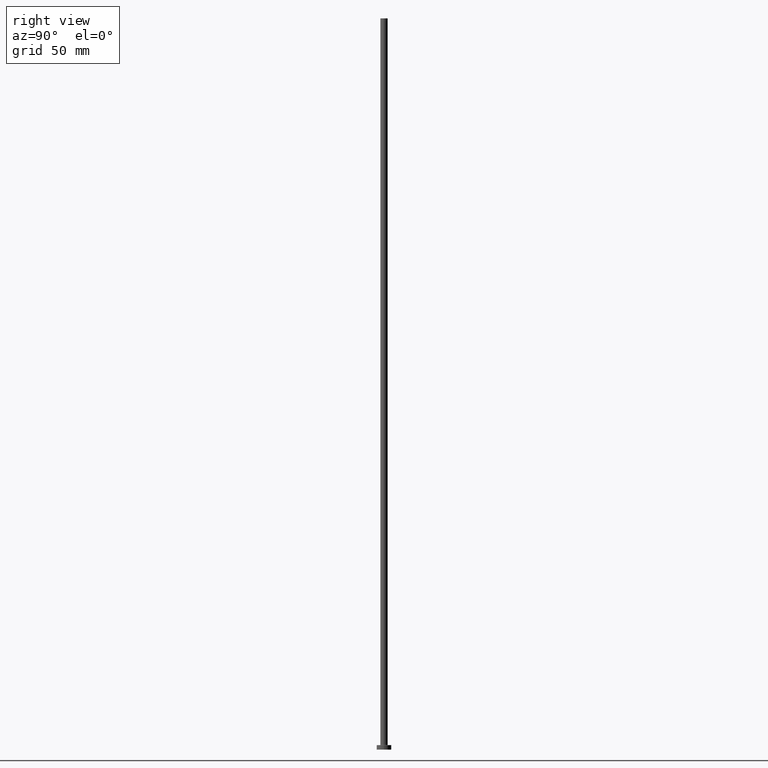
[diagram: clean part render]
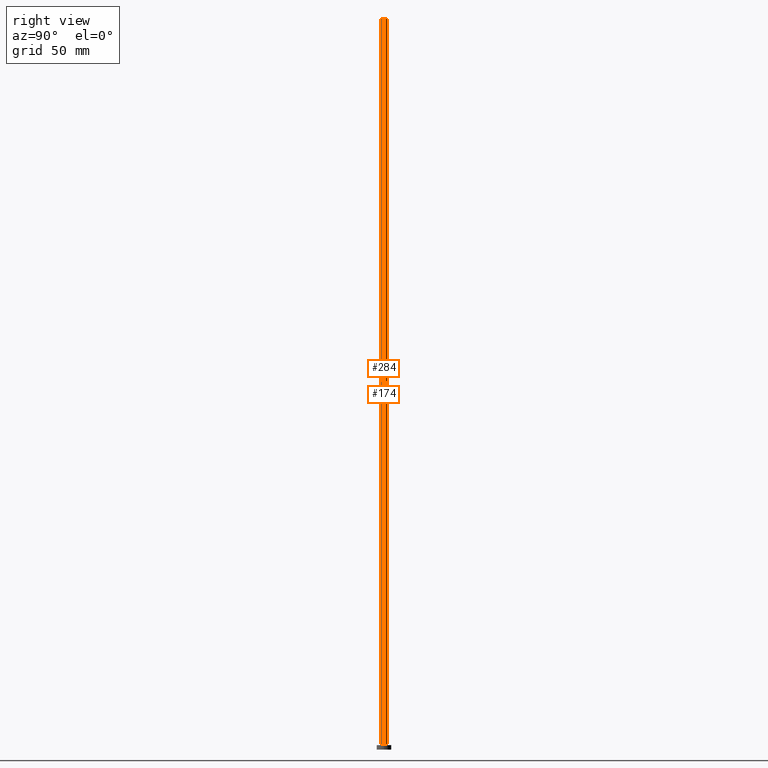
[diagram: same view with one multi-face feature highlighted, each face labeled with its STEP entity id]
A machine part, right view. The highlighted faces form ONE feature: a constant-radius fillet chain: 2 tangent blend faces with common blend radius 2.5 mm. The faces share edges in the B-rep.
Their STEP definitions:
[1] entity #174 (Cylinder):
#10 = VECTOR ( 'NONE', #457, 1000.000000000000000 ) ;
#11 = ORIENTED_EDGE ( 'NONE', *, *, #79, .T. ) ;
#13 = DIRECTION ( 'NONE',  ( -0.000000000000000000, -0.000000000000000000, -1.000000000000000000 ) ) ;
#19 = VERTEX_POINT ( 'NONE', #168 ) ;
#23 = CARTESIAN_POINT ( 'NONE',  ( 2.500000000000000000, 3.061616997868382648E-16, 3.300000000000025135 ) ) ;
#24 = CARTESIAN_POINT ( 'NONE',  ( 2.500000000000000000, 3.061616997868382648E-16, 500.0000000000000000 ) ) ;
#26 = AXIS2_PLACEMENT_3D ( 'NONE', #300, #407, #374 ) ;
#43 = AXIS2_PLACEMENT_3D ( 'NONE', #269, #385, #310 ) ;
#50 = VERTEX_POINT ( 'NONE', #23 ) ;
#63 = LINE ( 'NONE', #279, #10 ) ;
#79 = EDGE_CURVE ( 'NONE', #50, #19, #242, .T. ) ;
#89 = VECTOR ( 'NONE', #13, 1000.000000000000000 ) ;
#114 = CIRCLE ( 'NONE', #210, 2.500000000000000000 ) ;
#118 = EDGE_LOOP ( 'NONE', ( #258, #294, #11, #361 ) ) ;
#119 = LINE ( 'NONE', #326, #89 ) ;
#153 = CARTESIAN_POINT ( 'NONE',  ( -2.500000000000000000, 0.000000000000000000, 500.0000000000000000 ) ) ;
#168 = CARTESIAN_POINT ( 'NONE',  ( -2.500000000000000000, 0.000000000000000000, 3.300000000000025135 ) ) ;
#174 = ADVANCED_FACE ( 'NONE', ( #335 ), #193, .T. ) ;
#193 = CYLINDRICAL_SURFACE ( 'NONE', #26, 2.500000000000000000 ) ;
#210 = AXIS2_PLACEMENT_3D ( 'NONE', #411, #275, #306 ) ;
#218 = EDGE_CURVE ( 'NONE', #289, #19, #119, .T. ) ;
#242 = CIRCLE ( 'NONE', #43, 2.500000000000000000 ) ;
#258 = ORIENTED_EDGE ( 'NONE', *, *, #291, .F. ) ;
#269 = CARTESIAN_POINT ( 'NONE',  ( 0.000000000000000000, 0.000000000000000000, 3.300000000000025135 ) ) ;
#275 = DIRECTION ( 'NONE',  ( 0.000000000000000000, 0.000000000000000000, 1.000000000000000000 ) ) ;
#279 = CARTESIAN_POINT ( 'NONE',  ( 2.500000000000000000, 3.061616997868382648E-16, 500.0000000000000000 ) ) ;
#289 = VERTEX_POINT ( 'NONE', #153 ) ;
#291 = EDGE_CURVE ( 'NONE', #400, #289, #114, .T. ) ;
#294 = ORIENTED_EDGE ( 'NONE', *, *, #323, .T. ) ;
#300 = CARTESIAN_POINT ( 'NONE',  ( 0.000000000000000000, 0.000000000000000000, 500.0000000000000000 ) ) ;
#306 = DIRECTION ( 'NONE',  ( 1.000000000000000000, 0.000000000000000000, 0.000000000000000000 ) ) ;
#310 = DIRECTION ( 'NONE',  ( 1.000000000000000000, 0.000000000000000000, 0.000000000000000000 ) ) ;
#323 = EDGE_CURVE ( 'NONE', #400, #50, #63, .T. ) ;
#326 = CARTESIAN_POINT ( 'NONE',  ( -2.500000000000000000, 0.000000000000000000, 500.0000000000000000 ) ) ;
#335 = FACE_OUTER_BOUND ( 'NONE', #118, .T. ) ;
#361 = ORIENTED_EDGE ( 'NONE', *, *, #218, .F. ) ;
#374 = DIRECTION ( 'NONE',  ( -1.000000000000000000, 0.000000000000000000, 0.000000000000000000 ) ) ;
#385 = DIRECTION ( 'NONE',  ( 0.000000000000000000, 0.000000000000000000, 1.000000000000000000 ) ) ;
#400 = VERTEX_POINT ( 'NONE', #24 ) ;
#407 = DIRECTION ( 'NONE',  ( -0.000000000000000000, -0.000000000000000000, -1.000000000000000000 ) ) ;
#411 = CARTESIAN_POINT ( 'NONE',  ( 0.000000000000000000, 0.000000000000000000, 500.0000000000000000 ) ) ;
#457 = DIRECTION ( 'NONE',  ( -0.000000000000000000, -0.000000000000000000, -1.000000000000000000 ) ) ;
[2] entity #284 (Cylinder):
#10 = VECTOR ( 'NONE', #457, 1000.000000000000000 ) ;
#13 = DIRECTION ( 'NONE',  ( -0.000000000000000000, -0.000000000000000000, -1.000000000000000000 ) ) ;
#17 = ORIENTED_EDGE ( 'NONE', *, *, #323, .F. ) ;
#18 = DIRECTION ( 'NONE',  ( -1.000000000000000000, 0.000000000000000000, 0.000000000000000000 ) ) ;
#19 = VERTEX_POINT ( 'NONE', #168 ) ;
#23 = CARTESIAN_POINT ( 'NONE',  ( 2.500000000000000000, 3.061616997868382648E-16, 3.300000000000025135 ) ) ;
#24 = CARTESIAN_POINT ( 'NONE',  ( 2.500000000000000000, 3.061616997868382648E-16, 500.0000000000000000 ) ) ;
#50 = VERTEX_POINT ( 'NONE', #23 ) ;
#54 = CIRCLE ( 'NONE', #415, 2.500000000000000000 ) ;
#63 = LINE ( 'NONE', #279, #10 ) ;
#82 = EDGE_LOOP ( 'NONE', ( #17, #176, #116, #396 ) ) ;
#89 = VECTOR ( 'NONE', #13, 1000.000000000000000 ) ;
#106 = CIRCLE ( 'NONE', #417, 2.500000000000000000 ) ;
#116 = ORIENTED_EDGE ( 'NONE', *, *, #218, .T. ) ;
#119 = LINE ( 'NONE', #326, #89 ) ;
#153 = CARTESIAN_POINT ( 'NONE',  ( -2.500000000000000000, 0.000000000000000000, 500.0000000000000000 ) ) ;
#160 = DIRECTION ( 'NONE',  ( 1.000000000000000000, 0.000000000000000000, 0.000000000000000000 ) ) ;
#168 = CARTESIAN_POINT ( 'NONE',  ( -2.500000000000000000, 0.000000000000000000, 3.300000000000025135 ) ) ;
#172 = EDGE_CURVE ( 'NONE', #19, #50, #54, .T. ) ;
#176 = ORIENTED_EDGE ( 'NONE', *, *, #397, .F. ) ;
#189 = CARTESIAN_POINT ( 'NONE',  ( 0.000000000000000000, 0.000000000000000000, 500.0000000000000000 ) ) ;
#196 = CARTESIAN_POINT ( 'NONE',  ( 0.000000000000000000, 0.000000000000000000, 3.300000000000025135 ) ) ;
#209 = DIRECTION ( 'NONE',  ( 0.000000000000000000, 0.000000000000000000, 1.000000000000000000 ) ) ;
#218 = EDGE_CURVE ( 'NONE', #289, #19, #119, .T. ) ;
#227 = FACE_OUTER_BOUND ( 'NONE', #82, .T. ) ;
#262 = CYLINDRICAL_SURFACE ( 'NONE', #313, 2.500000000000000000 ) ;
#279 = CARTESIAN_POINT ( 'NONE',  ( 2.500000000000000000, 3.061616997868382648E-16, 500.0000000000000000 ) ) ;
#284 = ADVANCED_FACE ( 'NONE', ( #227 ), #262, .T. ) ;
#289 = VERTEX_POINT ( 'NONE', #153 ) ;
#309 = DIRECTION ( 'NONE',  ( 1.000000000000000000, 0.000000000000000000, 0.000000000000000000 ) ) ;
#313 = AXIS2_PLACEMENT_3D ( 'NONE', #189, #332, #18 ) ;
#323 = EDGE_CURVE ( 'NONE', #400, #50, #63, .T. ) ;
#326 = CARTESIAN_POINT ( 'NONE',  ( -2.500000000000000000, 0.000000000000000000, 500.0000000000000000 ) ) ;
#332 = DIRECTION ( 'NONE',  ( -0.000000000000000000, -0.000000000000000000, -1.000000000000000000 ) ) ;
#339 = DIRECTION ( 'NONE',  ( 0.000000000000000000, 0.000000000000000000, 1.000000000000000000 ) ) ;
#390 = CARTESIAN_POINT ( 'NONE',  ( 0.000000000000000000, 0.000000000000000000, 500.0000000000000000 ) ) ;
#396 = ORIENTED_EDGE ( 'NONE', *, *, #172, .T. ) ;
#397 = EDGE_CURVE ( 'NONE', #289, #400, #106, .T. ) ;
#400 = VERTEX_POINT ( 'NONE', #24 ) ;
#415 = AXIS2_PLACEMENT_3D ( 'NONE', #196, #339, #160 ) ;
#417 = AXIS2_PLACEMENT_3D ( 'NONE', #390, #209, #309 ) ;
#457 = DIRECTION ( 'NONE',  ( -0.000000000000000000, -0.000000000000000000, -1.000000000000000000 ) ) ;